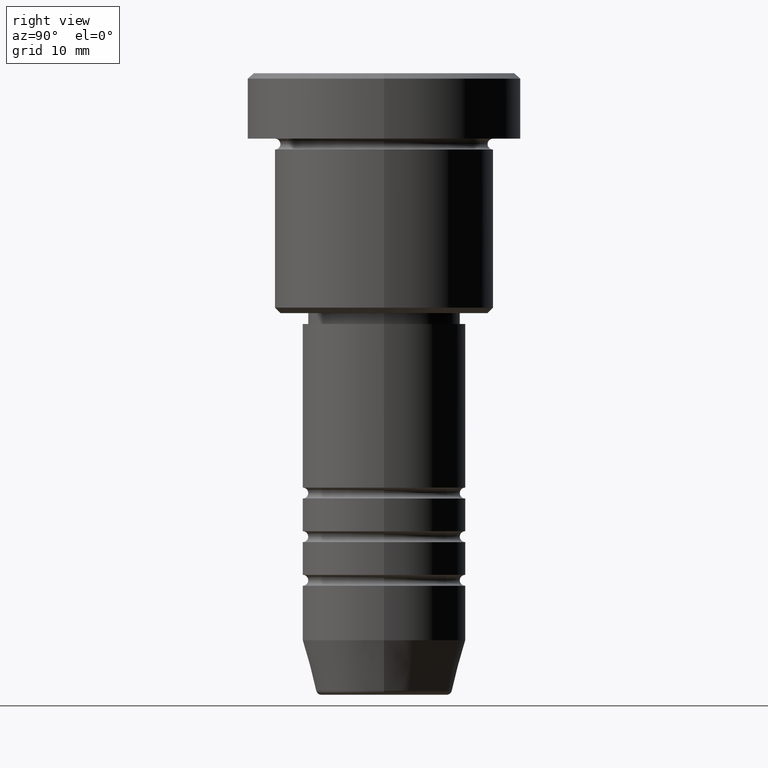
[diagram: clean part render]
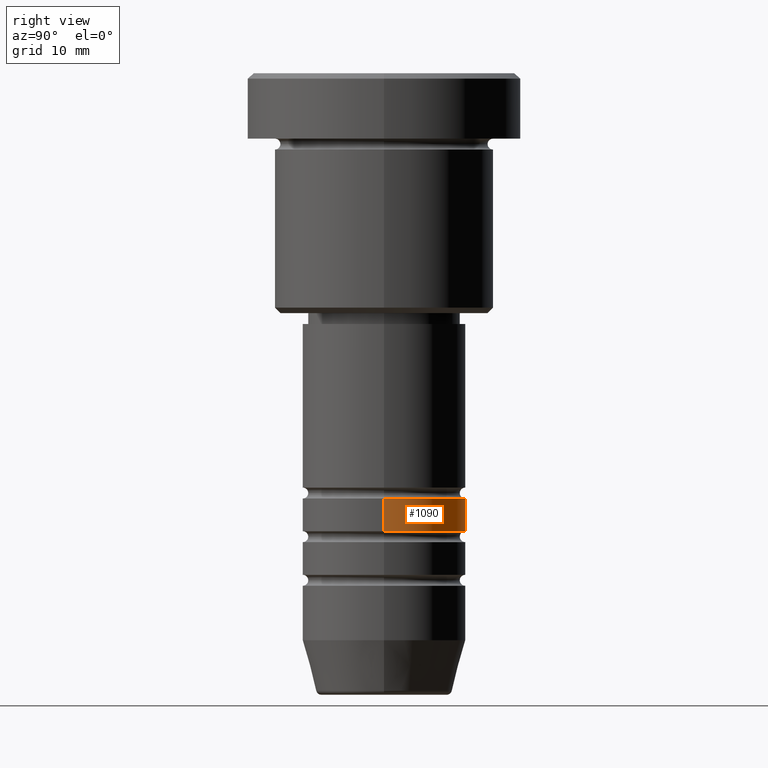
[diagram: same view with one face highlighted and labeled with its STEP entity id]
A machine part, right view. The second image highlights one B-rep face of the part: STEP entity #1090.
In plain terms, the highlighted cylindrical surface (partial cylindrical patch) has radius 7.5 mm, axis along (-0, -0, 1).
Its self-contained STEP definition (entity closure, byte-faithful):
#8 = VECTOR ( 'NONE', #73, 1000.000000000000000 ) ;
#14 = CARTESIAN_POINT ( 'NONE',  ( 0.000000000000000000, 0.000000000000000000, -41.99999999999991473 ) ) ;
#22 = CIRCLE ( 'NONE', #328, 7.500000000000002665 ) ;
#73 = DIRECTION ( 'NONE',  ( -0.000000000000000000, -0.000000000000000000, 1.000000000000000000 ) ) ;
#105 = CARTESIAN_POINT ( 'NONE',  ( 7.500000000000000000, 0.000000000000000000, -38.99999999999989342 ) ) ;
#125 = DIRECTION ( 'NONE',  ( -0.000000000000000000, -0.000000000000000000, 1.000000000000000000 ) ) ;
#204 = DIRECTION ( 'NONE',  ( 1.000000000000000000, 0.000000000000000000, 0.000000000000000000 ) ) ;
#215 = DIRECTION ( 'NONE',  ( -0.000000000000000000, -0.000000000000000000, 1.000000000000000000 ) ) ;
#221 = CARTESIAN_POINT ( 'NONE',  ( 7.500000000000001776, 0.000000000000000000, 0.000000000000000000 ) ) ;
#318 = DIRECTION ( 'NONE',  ( 1.000000000000000000, 0.000000000000000000, 0.000000000000000000 ) ) ;
#325 = CARTESIAN_POINT ( 'NONE',  ( -7.500000000000000000, 9.184850993605147944E-16, -38.99999999999989342 ) ) ;
#328 = AXIS2_PLACEMENT_3D ( 'NONE', #14, #939, #204 ) ;
#368 = AXIS2_PLACEMENT_3D ( 'NONE', #1102, #853, #470 ) ;
#395 = FACE_OUTER_BOUND ( 'NONE', #948, .T. ) ;
#401 = VECTOR ( 'NONE', #125, 1000.000000000000000 ) ;
#408 = ORIENTED_EDGE ( 'NONE', *, *, #909, .T. ) ;
#470 = DIRECTION ( 'NONE',  ( 1.000000000000000000, 0.000000000000000000, 0.000000000000000000 ) ) ;
#499 = LINE ( 'NONE', #221, #401 ) ;
#546 = CARTESIAN_POINT ( 'NONE',  ( -7.500000000000001776, 9.184850993605149917E-16, 0.000000000000000000 ) ) ;
#576 = CIRCLE ( 'NONE', #368, 7.500000000000000000 ) ;
#584 = ORIENTED_EDGE ( 'NONE', *, *, #966, .F. ) ;
#609 = VERTEX_POINT ( 'NONE', #1063 ) ;
#611 = LINE ( 'NONE', #546, #8 ) ;
#823 = EDGE_CURVE ( 'NONE', #1155, #1142, #611, .T. ) ;
#853 = DIRECTION ( 'NONE',  ( -0.000000000000000000, -0.000000000000000000, 1.000000000000000000 ) ) ;
#898 = VERTEX_POINT ( 'NONE', #105 ) ;
#901 = ORIENTED_EDGE ( 'NONE', *, *, #823, .T. ) ;
#909 = EDGE_CURVE ( 'NONE', #609, #1155, #22, .T. ) ;
#939 = DIRECTION ( 'NONE',  ( -0.000000000000000000, -0.000000000000000000, 1.000000000000000000 ) ) ;
#948 = EDGE_LOOP ( 'NONE', ( #408, #901, #584, #1014 ) ) ;
#966 = EDGE_CURVE ( 'NONE', #898, #1142, #576, .T. ) ;
#1014 = ORIENTED_EDGE ( 'NONE', *, *, #1029, .F. ) ;
#1029 = EDGE_CURVE ( 'NONE', #609, #898, #499, .T. ) ;
#1062 = CARTESIAN_POINT ( 'NONE',  ( -7.500000000000003553, 9.184850993605151889E-16, -41.99999999999991473 ) ) ;
#1063 = CARTESIAN_POINT ( 'NONE',  ( 7.500000000000002665, 0.000000000000000000, -41.99999999999991473 ) ) ;
#1090 = ADVANCED_FACE ( 'NONE', ( #395 ), #1144, .T. ) ;
#1102 = CARTESIAN_POINT ( 'NONE',  ( 0.000000000000000000, 0.000000000000000000, -38.99999999999989342 ) ) ;
#1128 = CARTESIAN_POINT ( 'NONE',  ( 0.000000000000000000, 0.000000000000000000, 0.000000000000000000 ) ) ;
#1134 = AXIS2_PLACEMENT_3D ( 'NONE', #1128, #215, #318 ) ;
#1142 = VERTEX_POINT ( 'NONE', #325 ) ;
#1144 = CYLINDRICAL_SURFACE ( 'NONE', #1134, 7.500000000000001776 ) ;
#1155 = VERTEX_POINT ( 'NONE', #1062 ) ;